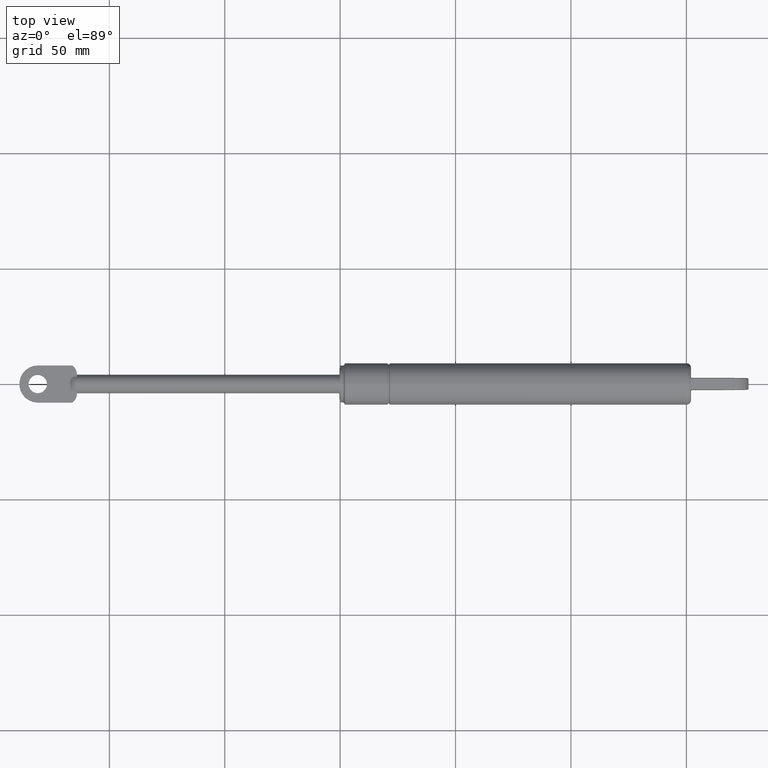
[diagram: clean part render]
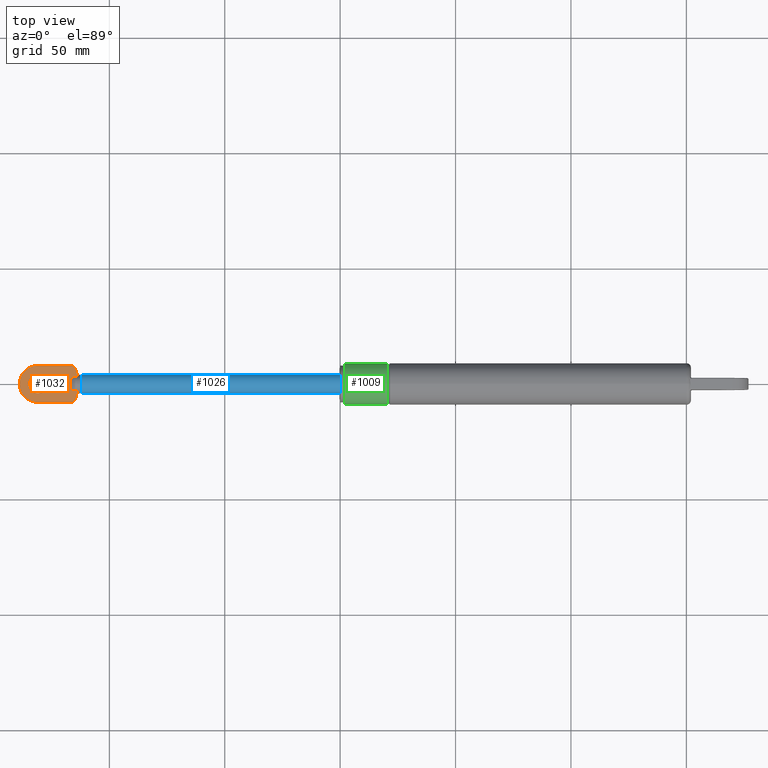
[diagram: same view with three faces highlighted in distinct colors, each labeled with its STEP entity id]
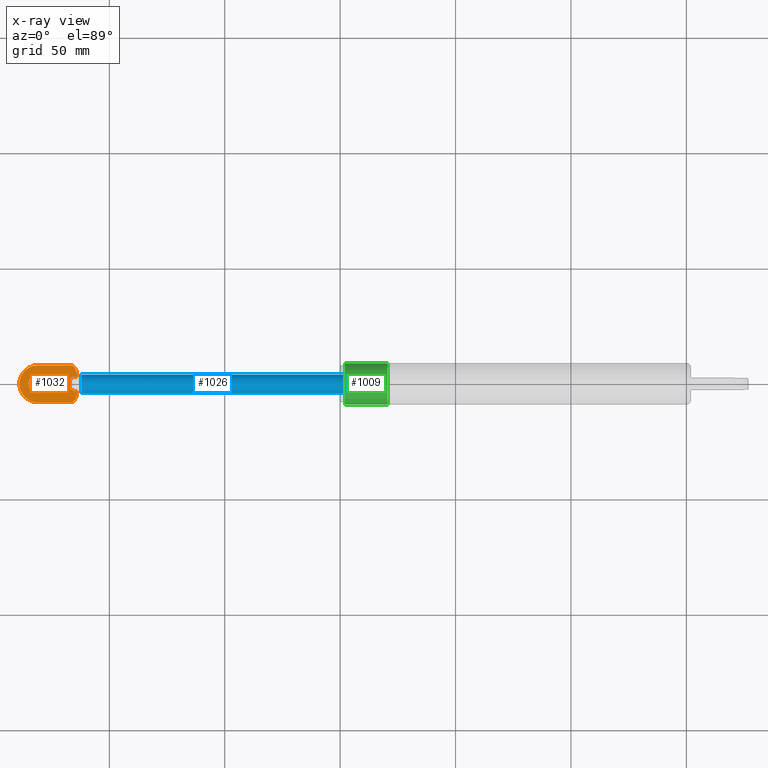
[diagram: x-ray of the same camera — body ghosted, the three highlighted faces saturated]
A machine part, top view with three faces highlighted in distinct colors.
The next image is the same camera in x-ray (body ghosted, the three faces saturated) — at least one of them is partly hidden behind the body in this view.
Their STEP definitions:

[orange] entity #1032 — the highlighted planar face has unit normal (0, 0, -1).
#83=B_SPLINE_CURVE_WITH_KNOTS('',3,(#2082,#2083,#2084,#2085,#2086,#2087,
#2088,#2089,#2090,#2091,#2092,#2093,#2094,#2095,#2096,#2097,#2098,#2099,
#2100,#2101,#2102,#2103,#2104,#2105,#2106,#2107,#2108,#2109,#2110),
 .UNSPECIFIED.,.F.,.F.,(4,2,2,2,2,2,2,2,2,2,2,2,2,1,4),(0.,0.0855483950721535,
0.163927182009759,0.235763517105653,0.281020560522819,0.294696892743852,
0.301517678430852,0.302246937363504,0.302474823835096,0.302546285934046,
0.302568867684153,0.302571650977096,0.302574738663409,0.302577288943905,
0.30258040243167),.UNSPECIFIED.);
#84=B_SPLINE_CURVE_WITH_KNOTS('',3,(#2113,#2114,#2115,#2116,#2117,#2118,
#2119,#2120,#2121,#2122,#2123,#2124,#2125,#2126,#2127,#2128,#2129,#2130,
#2131,#2132,#2133,#2134,#2135,#2136,#2137),.UNSPECIFIED.,.F.,.F.,(4,1,2,
2,2,2,2,2,2,2,2,2,4),(-4.38927187221045E-6,0.,2.64907524116485E-6,6.78693062209797E-6,
5.77711550021425E-5,0.000189213823953366,0.000610810283865026,0.00468175069211998,
0.012708915402714,0.0395060023982884,0.0819502128248498,0.128267535897305,
0.178821620048345),.UNSPECIFIED.);
#100=LINE('',#1906,#142);
#101=LINE('',#1910,#143);
#108=LINE('',#1966,#150);
#110=LINE('',#1970,#152);
#111=LINE('',#1973,#153);
#112=LINE('',#1984,#154);
#123=LINE('',#2112,#165);
#124=LINE('',#2139,#166);
#125=LINE('',#2142,#167);
#142=VECTOR('',#1331,0.00128092262626112);
#143=VECTOR('',#1334,0.00128092262626112);
#150=VECTOR('',#1375,0.876220078174536);
#152=VECTOR('',#1379,0.876220078174534);
#153=VECTOR('',#1382,1.04843812547128);
#154=VECTOR('',#1383,1.04843812546932);
#165=VECTOR('',#1426,3.00000000000003);
#166=VECTOR('',#1427,14.6457513110646);
#167=VECTOR('',#1430,14.6457513110646);
#189=PLANE('',#1154);
#243=FACE_BOUND('',#394,.T.);
#303=FACE_OUTER_BOUND('',#393,.T.);
#393=EDGE_LOOP('',(#921,#922,#923,#924,#925,#926,#927,#928,#929,#930,#931,
#932,#933,#934,#935,#936));
#394=EDGE_LOOP('',(#937));
#454=CIRCLE('',#1134,4.99999999999998);
#457=CIRCLE('',#1142,1.);
#463=CIRCLE('',#1150,1.);
#464=CIRCLE('',#1152,4.99999999999998);
#465=CIRCLE('',#1155,8.);
#466=CIRCLE('',#1156,4.);
#519=VERTEX_POINT('',#1904);
#520=VERTEX_POINT('',#1905);
#521=VERTEX_POINT('',#1907);
#522=VERTEX_POINT('',#1909);
#536=VERTEX_POINT('',#1958);
#537=VERTEX_POINT('',#1960);
#539=VERTEX_POINT('',#1968);
#540=VERTEX_POINT('',#1972);
#541=VERTEX_POINT('',#1974);
#543=VERTEX_POINT('',#1989);
#555=VERTEX_POINT('',#2071);
#556=VERTEX_POINT('',#2073);
#557=VERTEX_POINT('',#2081);
#558=VERTEX_POINT('',#2111);
#559=VERTEX_POINT('',#2138);
#560=VERTEX_POINT('',#2140);
#561=VERTEX_POINT('',#2143);
#636=EDGE_CURVE('',#519,#520,#100,.T.);
#638=EDGE_CURVE('',#522,#521,#101,.T.);
#657=EDGE_CURVE('',#537,#536,#454,.T.);
#660=EDGE_CURVE('',#536,#519,#108,.T.);
#662=EDGE_CURVE('',#521,#539,#110,.T.);
#663=EDGE_CURVE('',#540,#522,#111,.T.);
#665=EDGE_CURVE('',#520,#541,#112,.T.);
#667=EDGE_CURVE('',#537,#543,#457,.T.);
#683=EDGE_CURVE('',#555,#556,#463,.T.);
#686=EDGE_CURVE('',#539,#556,#464,.T.);
#687=EDGE_CURVE('',#541,#557,#83,.T.);
#688=EDGE_CURVE('',#557,#558,#123,.T.);
#689=EDGE_CURVE('',#540,#558,#84,.F.);
#690=EDGE_CURVE('',#555,#559,#124,.T.);
#691=EDGE_CURVE('',#559,#560,#465,.T.);
#692=EDGE_CURVE('',#560,#543,#125,.T.);
#693=EDGE_CURVE('',#561,#561,#466,.T.);
#921=ORIENTED_EDGE('',*,*,#667,.F.);
#922=ORIENTED_EDGE('',*,*,#657,.T.);
#923=ORIENTED_EDGE('',*,*,#660,.T.);
#924=ORIENTED_EDGE('',*,*,#636,.T.);
#925=ORIENTED_EDGE('',*,*,#665,.T.);
#926=ORIENTED_EDGE('',*,*,#687,.T.);
#927=ORIENTED_EDGE('',*,*,#688,.T.);
#928=ORIENTED_EDGE('',*,*,#689,.F.);
#929=ORIENTED_EDGE('',*,*,#663,.T.);
#930=ORIENTED_EDGE('',*,*,#638,.T.);
#931=ORIENTED_EDGE('',*,*,#662,.T.);
#932=ORIENTED_EDGE('',*,*,#686,.T.);
#933=ORIENTED_EDGE('',*,*,#683,.F.);
#934=ORIENTED_EDGE('',*,*,#690,.T.);
#935=ORIENTED_EDGE('',*,*,#691,.T.);
#936=ORIENTED_EDGE('',*,*,#692,.T.);
#937=ORIENTED_EDGE('',*,*,#693,.T.);
#1032=ADVANCED_FACE('',(#303,#243),#189,.F.);
#1134=AXIS2_PLACEMENT_3D('',#1961,#1368,#1369);
#1142=AXIS2_PLACEMENT_3D('',#1990,#1390,#1391);
#1150=AXIS2_PLACEMENT_3D('',#2074,#1414,#1415);
#1152=AXIS2_PLACEMENT_3D('',#2078,#1420,#1421);
#1154=AXIS2_PLACEMENT_3D('',#2080,#1424,#1425);
#1155=AXIS2_PLACEMENT_3D('',#2141,#1428,#1429);
#1156=AXIS2_PLACEMENT_3D('',#2144,#1431,#1432);
#1331=DIRECTION('',(0.,0.,1.));
#1334=DIRECTION('',(0.,0.,1.));
#1368=DIRECTION('center_axis',(0.,-1.,0.));
#1369=DIRECTION('ref_axis',(-0.599999999999998,0.,0.800000000000001));
#1375=DIRECTION('',(0.,0.,1.));
#1379=DIRECTION('',(0.,0.,1.));
#1382=DIRECTION('',(1.,0.,0.));
#1383=DIRECTION('',(-1.,0.,0.));
#1390=DIRECTION('center_axis',(0.,1.,0.));
#1391=DIRECTION('ref_axis',(0.353553390593273,0.,-0.935414346693486));
#1414=DIRECTION('center_axis',(0.,1.,0.));
#1415=DIRECTION('ref_axis',(0.353553390593273,0.,0.935414346693486));
#1420=DIRECTION('center_axis',(0.,-1.,0.));
#1421=DIRECTION('ref_axis',(-0.599999999999998,0.,-0.800000000000001));
#1424=DIRECTION('center_axis',(0.,1.,0.));
#1425=DIRECTION('ref_axis',(0.,0.,1.));
#1426=DIRECTION('',(0.,0.,1.));
#1427=DIRECTION('',(-1.,0.,-1.30614473485313E-16));
#1428=DIRECTION('center_axis',(0.,-1.,0.));
#1429=DIRECTION('ref_axis',(1.,0.,0.));
#1430=DIRECTION('',(1.,0.,-1.30614473485313E-16));
#1431=DIRECTION('center_axis',(0.,1.,0.));
#1432=DIRECTION('ref_axis',(1.,0.,0.));
#1904=CARTESIAN_POINT('',(0.,-2.5,-3.12377992182548));
#1905=CARTESIAN_POINT('',(0.,-2.5,-3.12249899919922));
#1906=CARTESIAN_POINT('',(0.,-2.5,-8.00000000000001));
#1907=CARTESIAN_POINT('',(0.,-2.5,3.12377992182548));
#1909=CARTESIAN_POINT('',(0.,-2.5,3.12249899919922));
#1910=CARTESIAN_POINT('',(0.,-2.5,-8.00000000000001));
#1958=CARTESIAN_POINT('',(0.,-2.5,-4.00000000000002));
#1960=CARTESIAN_POINT('',(-1.69281086116926,-2.5,-7.75000000000001));
#1961=CARTESIAN_POINT('Origin',(-4.99999999999998,-2.5,-4.00000000000002));
#1966=CARTESIAN_POINT('',(0.,-2.5,-8.00000000000001));
#1968=CARTESIAN_POINT('',(0.,-2.5,4.00000000000002));
#1970=CARTESIAN_POINT('',(0.,-2.5,-8.00000000000001));
#1972=CARTESIAN_POINT('',(-1.04843812547128,-2.50000000004865,3.12249899916027));
#1973=CARTESIAN_POINT('',(0.,-2.5,3.12249899919924));
#1974=CARTESIAN_POINT('',(-1.04843812546932,-2.50000000005192,-3.12249899915765));
#1984=CARTESIAN_POINT('',(0.,-2.5,-3.12249899919924));
#1989=CARTESIAN_POINT('',(-2.35424868893541,-2.5,-8.00000000000001));
#1990=CARTESIAN_POINT('Origin',(-2.35424868893541,-2.5,-7.00000000000001));
#2071=CARTESIAN_POINT('',(-2.35424868893541,-2.5,8.00000000000001));
#2073=CARTESIAN_POINT('',(-1.69281086116926,-2.5,7.75000000000001));
#2074=CARTESIAN_POINT('Origin',(-2.35424868893541,-2.5,7.00000000000001));
#2078=CARTESIAN_POINT('Origin',(-4.99999999999998,-2.5,4.00000000000002));
#2080=CARTESIAN_POINT('Origin',(-10.2461445222946,-2.5,-2.41880214715627E-16));
#2081=CARTESIAN_POINT('',(-3.,-2.5,-1.50000000000002));
#2082=CARTESIAN_POINT('Ctrl Pts',(-1.04843812550049,-2.5,-3.12249899919922));
#2083=CARTESIAN_POINT('Ctrl Pts',(-1.33359944240767,-2.5,-3.12249899919922));
#2084=CARTESIAN_POINT('Ctrl Pts',(-1.61609693155144,-2.5,-3.06798324597847));
#2085=CARTESIAN_POINT('Ctrl Pts',(-2.11916447030406,-2.5,-2.85752983846634));
#2086=CARTESIAN_POINT('Ctrl Pts',(-2.33876259816753,-2.49999999989017,-2.71208321081664));
#2087=CARTESIAN_POINT('Ctrl Pts',(-2.68887384459134,-2.49999999989017,-2.35751719607779));
#2088=CARTESIAN_POINT('Ctrl Pts',(-2.81272715926784,-2.5,-2.16743720198872));
#2089=CARTESIAN_POINT('Ctrl Pts',(-2.94384647662549,-2.5,-1.85182378535503));
#2090=CARTESIAN_POINT('Ctrl Pts',(-2.97312389657112,-2.5,-1.73855330805715));
#2091=CARTESIAN_POINT('Ctrl Pts',(-2.99248927776218,-2.5,-1.61076880905639));
#2092=CARTESIAN_POINT('Ctrl Pts',(-2.99594240338355,-2.49999999999989,-1.58061100749944));
#2093=CARTESIAN_POINT('Ctrl Pts',(-2.99902573798331,-2.49999999999989,-1.53604792636028));
#2094=CARTESIAN_POINT('Ctrl Pts',(-2.99973362575493,-2.5,-1.52086444634453));
#2095=CARTESIAN_POINT('Ctrl Pts',(-2.99996655220268,-2.5,-1.50511080406931));
#2096=CARTESIAN_POINT('Ctrl Pts',(-2.99998356397879,-2.5,-1.50356555075774));
#2097=CARTESIAN_POINT('Ctrl Pts',(-2.9999956884507,-2.5,-1.50158665304103));
#2098=CARTESIAN_POINT('Ctrl Pts',(-2.99999787446638,-2.5,-1.50110818198023));
#2099=CARTESIAN_POINT('Ctrl Pts',(-2.9999994389973,-2.5,-1.50049492833529));
#2100=CARTESIAN_POINT('Ctrl Pts',(-2.99999972221664,-2.5,-1.50034626297667));
#2101=CARTESIAN_POINT('Ctrl Pts',(-2.99999992619228,-2.5,-1.50015533731782));
#2102=CARTESIAN_POINT('Ctrl Pts',(-2.99999996336128,-2.5,-1.50010878395868));
#2103=CARTESIAN_POINT('Ctrl Pts',(-2.99999998626828,-2.5,-1.50005774832715));
#2104=CARTESIAN_POINT('Ctrl Pts',(-2.99999998853585,-2.5,-1.50005213909645));
#2105=CARTESIAN_POINT('Ctrl Pts',(-2.99999999274193,-2.5,-1.50004032896014));
#2106=CARTESIAN_POINT('Ctrl Pts',(-2.99999999463108,-2.5,-1.50003409154294));
#2107=CARTESIAN_POINT('Ctrl Pts',(-2.99999999737918,-2.5,-1.50002275960517));
#2108=CARTESIAN_POINT('Ctrl Pts',(-2.99999999837645,-2.5,-1.50001758693635));
#2109=CARTESIAN_POINT('Ctrl Pts',(-2.99999999988184,-2.5,-1.50000623847721));
#2110=CARTESIAN_POINT('Ctrl Pts',(-3.,-2.5,-1.50000000000002));
#2111=CARTESIAN_POINT('',(-3.,-2.5,1.50000000000002));
#2112=CARTESIAN_POINT('',(-3.,-2.5,-8.44527320016252E-18));
#2113=CARTESIAN_POINT('Ctrl Pts',(-3.,-2.5,1.50000000000002));
#2114=CARTESIAN_POINT('Ctrl Pts',(-2.99999999947489,-2.5,1.50001463090642));
#2115=CARTESIAN_POINT('Ctrl Pts',(-2.99999999357595,-2.5,1.50003809206272));
#2116=CARTESIAN_POINT('Ctrl Pts',(-2.99999999058562,-2.5,1.5000469928798));
#2117=CARTESIAN_POINT('Ctrl Pts',(-2.99999998133363,-2.5,1.50006965315932));
#2118=CARTESIAN_POINT('Ctrl Pts',(-2.99999997409075,-2.5,1.50008355081031));
#2119=CARTESIAN_POINT('Ctrl Pts',(-2.99999985990904,-2.5,1.50026778832288));
#2120=CARTESIAN_POINT('Ctrl Pts',(-2.99999954876482,-2.5,1.50044826844605));
#2121=CARTESIAN_POINT('Ctrl Pts',(-2.99999797098149,-2.5,1.50107913057056));
#2122=CARTESIAN_POINT('Ctrl Pts',(-2.99999588470834,-2.5,1.50154498943275));
#2123=CARTESIAN_POINT('Ctrl Pts',(-2.99998429361391,-2.5,1.50347510202599));
#2124=CARTESIAN_POINT('Ctrl Pts',(-2.99996800529255,-2.5,1.50498318538192));
#2125=CARTESIAN_POINT('Ctrl Pts',(-2.99973841654795,-2.5,1.52080737549018));
#2126=CARTESIAN_POINT('Ctrl Pts',(-2.99902343219457,-2.4999999999999,1.53613002780164));
#2127=CARTESIAN_POINT('Ctrl Pts',(-2.99593603264019,-2.4999999999999,1.58060583783909));
#2128=CARTESIAN_POINT('Ctrl Pts',(-2.9925138535836,-2.5,1.61052965140135));
#2129=CARTESIAN_POINT('Ctrl Pts',(-2.97321572652326,-2.5,1.73820176524519));
#2130=CARTESIAN_POINT('Ctrl Pts',(-2.94391855377423,-2.5,1.85167138575799));
#2131=CARTESIAN_POINT('Ctrl Pts',(-2.81268844650043,-2.5,2.16749695350084));
#2132=CARTESIAN_POINT('Ctrl Pts',(-2.68884720526953,-2.49999999987769,2.35754405285036));
#2133=CARTESIAN_POINT('Ctrl Pts',(-2.338762943789,-2.49999999987769,2.7120829934309));
#2134=CARTESIAN_POINT('Ctrl Pts',(-2.11916459766941,-2.5,2.8575298050512));
#2135=CARTESIAN_POINT('Ctrl Pts',(-1.61609683490442,-2.5,3.06798326472562));
#2136=CARTESIAN_POINT('Ctrl Pts',(-1.33359939337631,-2.5,3.12249899919922));
#2137=CARTESIAN_POINT('Ctrl Pts',(-1.04843812550049,-2.5,3.12249899919922));
#2138=CARTESIAN_POINT('',(-17.,-2.5,8.));
#2139=CARTESIAN_POINT('',(0.,-2.5,8.00000000000001));
#2140=CARTESIAN_POINT('',(-17.,-2.5,-8.));
#2141=CARTESIAN_POINT('Origin',(-17.,-2.5,3.33066907387547E-15));
#2142=CARTESIAN_POINT('',(-17.,-2.5,-8.));
#2143=CARTESIAN_POINT('',(-21.,-2.5,-2.84081035421653E-15));
#2144=CARTESIAN_POINT('Origin',(-17.,-2.5,-3.33066907387547E-15));

[blue] entity #1026 — the highlighted cylindrical surface (bore or boss wall) has radius 4 mm, axis along (-1, 0, -0).
#212=CYLINDRICAL_SURFACE('',#1139,4.00000000000002);
#241=FACE_BOUND('',#386,.T.);
#297=FACE_OUTER_BOUND('',#385,.T.);
#385=EDGE_LOOP('',(#884));
#386=EDGE_LOOP('',(#885));
#449=CIRCLE('',#1126,4.00000000000002);
#456=CIRCLE('',#1140,4.);
#528=VERTEX_POINT('',#1924);
#542=VERTEX_POINT('',#1986);
#645=EDGE_CURVE('',#528,#528,#449,.T.);
#666=EDGE_CURVE('',#542,#542,#456,.T.);
#884=ORIENTED_EDGE('',*,*,#666,.T.);
#885=ORIENTED_EDGE('',*,*,#645,.T.);
#1026=ADVANCED_FACE('',(#297,#241),#212,.T.);
#1126=AXIS2_PLACEMENT_3D('',#1925,#1349,#1350);
#1139=AXIS2_PLACEMENT_3D('',#1985,#1384,#1385);
#1140=AXIS2_PLACEMENT_3D('',#1987,#1386,#1387);
#1349=DIRECTION('center_axis',(1.,0.,0.));
#1350=DIRECTION('ref_axis',(0.,0.,1.));
#1384=DIRECTION('center_axis',(-1.,0.,0.));
#1385=DIRECTION('ref_axis',(0.,0.,1.));
#1386=DIRECTION('center_axis',(-1.,0.,0.));
#1387=DIRECTION('ref_axis',(0.,0.,1.));
#1924=CARTESIAN_POINT('',(2.,4.89858719658943E-16,-4.00000000000002));
#1925=CARTESIAN_POINT('Origin',(2.,0.,0.));
#1985=CARTESIAN_POINT('Origin',(63.,0.,0.));
#1986=CARTESIAN_POINT('',(126.,0.,4.));
#1987=CARTESIAN_POINT('Origin',(126.,0.,0.));

[green] entity #1009 — the highlighted cylindrical surface (bore or boss wall) has radius 9 mm, axis along (-1, 0, 0).
#205=CYLINDRICAL_SURFACE('',#1102,9.00000000000001);
#231=FACE_BOUND('',#359,.T.);
#280=FACE_OUTER_BOUND('',#358,.T.);
#358=EDGE_LOOP('',(#827));
#359=EDGE_LOOP('',(#828));
#432=CIRCLE('',#1091,9.00000000000001);
#433=CIRCLE('',#1093,9.);
#507=VERTEX_POINT('',#1864);
#508=VERTEX_POINT('',#1867);
#624=EDGE_CURVE('',#507,#507,#432,.T.);
#625=EDGE_CURVE('',#508,#508,#433,.T.);
#827=ORIENTED_EDGE('',*,*,#625,.F.);
#828=ORIENTED_EDGE('',*,*,#624,.T.);
#1009=ADVANCED_FACE('',(#280,#231),#205,.T.);
#1091=AXIS2_PLACEMENT_3D('',#1865,#1275,#1276);
#1093=AXIS2_PLACEMENT_3D('',#1868,#1279,#1280);
#1102=AXIS2_PLACEMENT_3D('',#1881,#1297,#1298);
#1275=DIRECTION('center_axis',(-1.,0.,0.));
#1276=DIRECTION('ref_axis',(0.,0.,1.));
#1279=DIRECTION('center_axis',(-1.,0.,0.));
#1280=DIRECTION('ref_axis',(0.,0.,1.));
#1297=DIRECTION('center_axis',(-1.,0.,0.));
#1298=DIRECTION('ref_axis',(0.,0.,1.));
#1864=CARTESIAN_POINT('',(20.5,0.,9.00000000000001));
#1865=CARTESIAN_POINT('Origin',(20.5,0.,0.));
#1867=CARTESIAN_POINT('',(1.99999999999999,0.,9.));
#1868=CARTESIAN_POINT('Origin',(1.99999999999999,0.,0.));
#1881=CARTESIAN_POINT('Origin',(11.25,0.,0.));